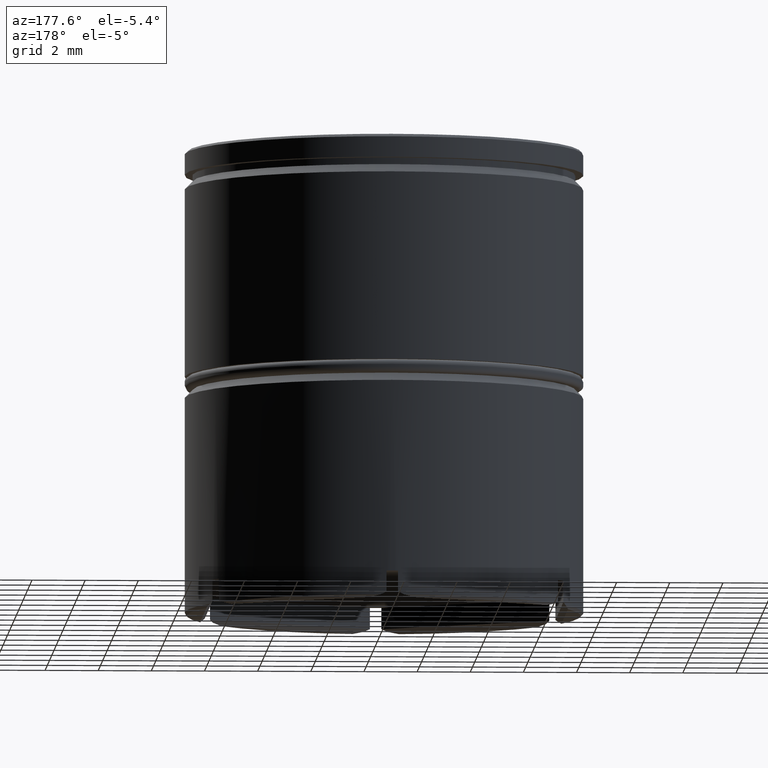
[diagram: clean part render]
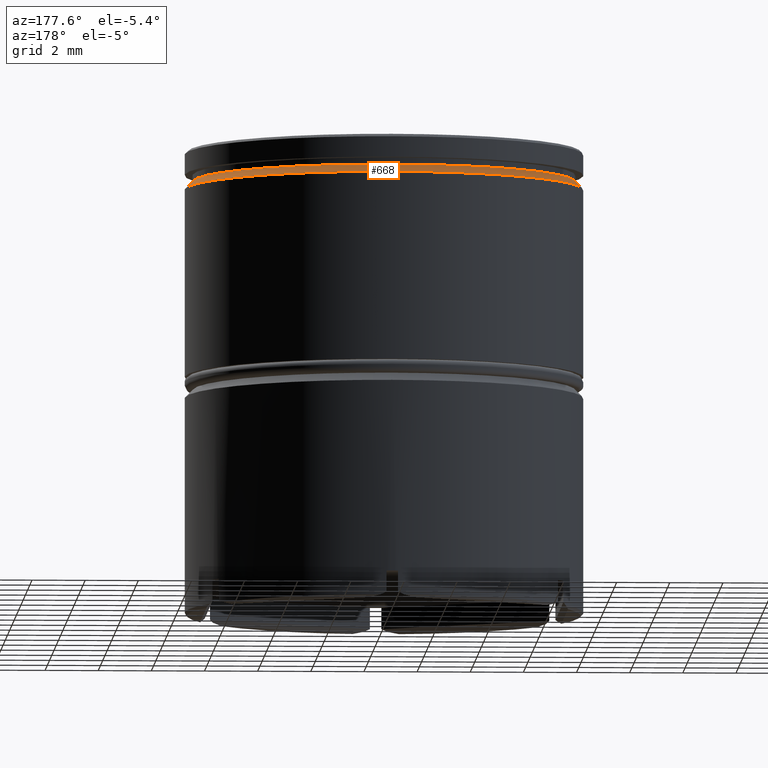
[diagram: same view with one face highlighted and labeled with its STEP entity id]
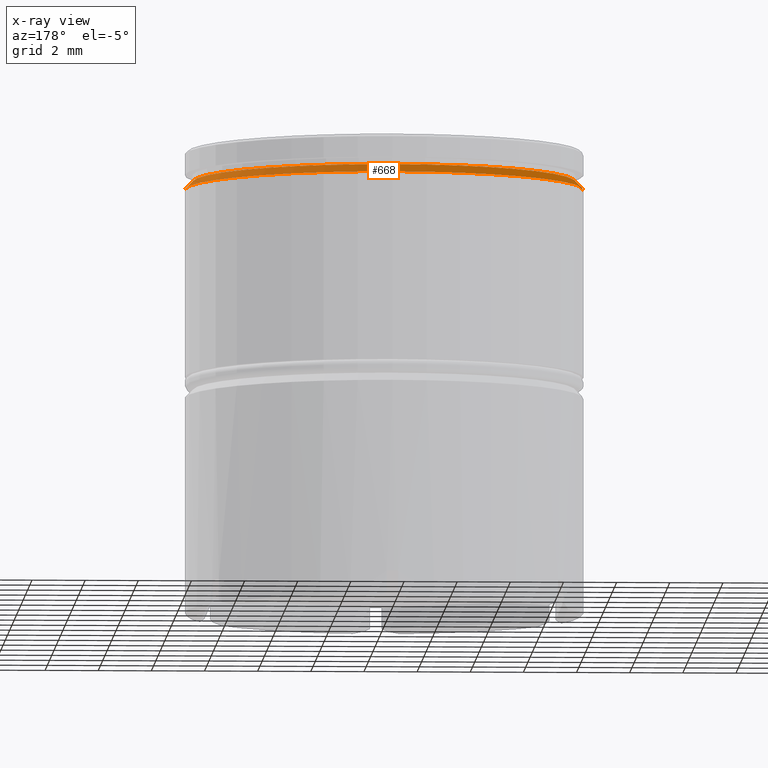
[diagram: x-ray of the same camera — body ghosted, the highlighted face saturated]
A machine part, auxiliary view. The second image highlights one B-rep face of the part: STEP entity #668.
The next image is the same camera in x-ray: the body ghosted, the highlighted face saturated — about 0% of this face is hidden behind the body in this view.
In plain terms, the highlighted conical surface has half-angle 45 deg.
Its self-contained STEP definition (entity closure, byte-faithful):
#1 = DIRECTION ( 'NONE',  ( -1.000000000000000000, 0.000000000000000000, 0.000000000000000000 ) ) ;
#25 = DIRECTION ( 'NONE',  ( 1.000000000000000000, 0.000000000000000000, 0.000000000000000000 ) ) ;
#61 = CARTESIAN_POINT ( 'NONE',  ( 7.200000000000001954, 8.817456953860946247E-16, -1.125000000000000222 ) ) ;
#67 = DIRECTION ( 'NONE',  ( -0.000000000000000000, -0.000000000000000000, 1.000000000000000000 ) ) ;
#76 = DIRECTION ( 'NONE',  ( 1.000000000000000000, 0.000000000000000000, 0.000000000000000000 ) ) ;
#86 = EDGE_CURVE ( 'NONE', #595, #1545, #322, .T. ) ;
#112 = VECTOR ( 'NONE', #217, 1000.000000000000000 ) ;
#194 = CARTESIAN_POINT ( 'NONE',  ( -7.200000000000001954, 0.000000000000000000, -1.125000000000000222 ) ) ;
#217 = DIRECTION ( 'NONE',  ( 0.7071067811865485719, 8.659560562354946417E-17, -0.7071067811865465735 ) ) ;
#234 = CARTESIAN_POINT ( 'NONE',  ( -7.500000000000000000, 9.184850993605147944E-16, -1.424999999999997380 ) ) ;
#268 = DIRECTION ( 'NONE',  ( 0.000000000000000000, 0.000000000000000000, -1.000000000000000000 ) ) ;
#283 = AXIS2_PLACEMENT_3D ( 'NONE', #629, #268, #1 ) ;
#322 = CIRCLE ( 'NONE', #1452, 7.500000000000000000 ) ;
#379 = VECTOR ( 'NONE', #581, 1000.000000000000000 ) ;
#426 = EDGE_CURVE ( 'NONE', #684, #595, #939, .T. ) ;
#480 = AXIS2_PLACEMENT_3D ( 'NONE', #610, #67, #76 ) ;
#505 = FACE_OUTER_BOUND ( 'NONE', #1466, .T. ) ;
#581 = DIRECTION ( 'NONE',  ( -0.7071067811865485719, 0.000000000000000000, -0.7071067811865465735 ) ) ;
#595 = VERTEX_POINT ( 'NONE', #234 ) ;
#610 = CARTESIAN_POINT ( 'NONE',  ( 0.000000000000000000, 0.000000000000000000, -1.125000000000000222 ) ) ;
#614 = VERTEX_POINT ( 'NONE', #1134 ) ;
#626 = ORIENTED_EDGE ( 'NONE', *, *, #86, .F. ) ;
#629 = CARTESIAN_POINT ( 'NONE',  ( 0.000000000000000000, 0.000000000000000000, -1.125000000000000222 ) ) ;
#668 = ADVANCED_FACE ( 'NONE', ( #505 ), #765, .T. ) ;
#684 = VERTEX_POINT ( 'NONE', #1516 ) ;
#765 = CONICAL_SURFACE ( 'NONE', #283, 7.200000000000001954, 0.7853981633974497223 ) ;
#939 = LINE ( 'NONE', #194, #379 ) ;
#959 = EDGE_CURVE ( 'NONE', #614, #684, #1633, .T. ) ;
#987 = DIRECTION ( 'NONE',  ( 0.000000000000000000, 0.000000000000000000, -1.000000000000000000 ) ) ;
#1081 = ORIENTED_EDGE ( 'NONE', *, *, #959, .F. ) ;
#1096 = ORIENTED_EDGE ( 'NONE', *, *, #1196, .T. ) ;
#1134 = CARTESIAN_POINT ( 'NONE',  ( 7.200000000000000178, 0.000000000000000000, -1.125000000000000222 ) ) ;
#1153 = CARTESIAN_POINT ( 'NONE',  ( 0.000000000000000000, 0.000000000000000000, -1.424999999999997380 ) ) ;
#1168 = CARTESIAN_POINT ( 'NONE',  ( 7.500000000000000000, 0.000000000000000000, -1.424999999999997380 ) ) ;
#1196 = EDGE_CURVE ( 'NONE', #614, #1545, #1331, .T. ) ;
#1331 = LINE ( 'NONE', #61, #112 ) ;
#1452 = AXIS2_PLACEMENT_3D ( 'NONE', #1153, #987, #25 ) ;
#1466 = EDGE_LOOP ( 'NONE', ( #1081, #1096, #626, #1488 ) ) ;
#1488 = ORIENTED_EDGE ( 'NONE', *, *, #426, .F. ) ;
#1516 = CARTESIAN_POINT ( 'NONE',  ( -7.200000000000000178, 8.817456953860942303E-16, -1.125000000000000222 ) ) ;
#1545 = VERTEX_POINT ( 'NONE', #1168 ) ;
#1633 = CIRCLE ( 'NONE', #480, 7.200000000000000178 ) ;